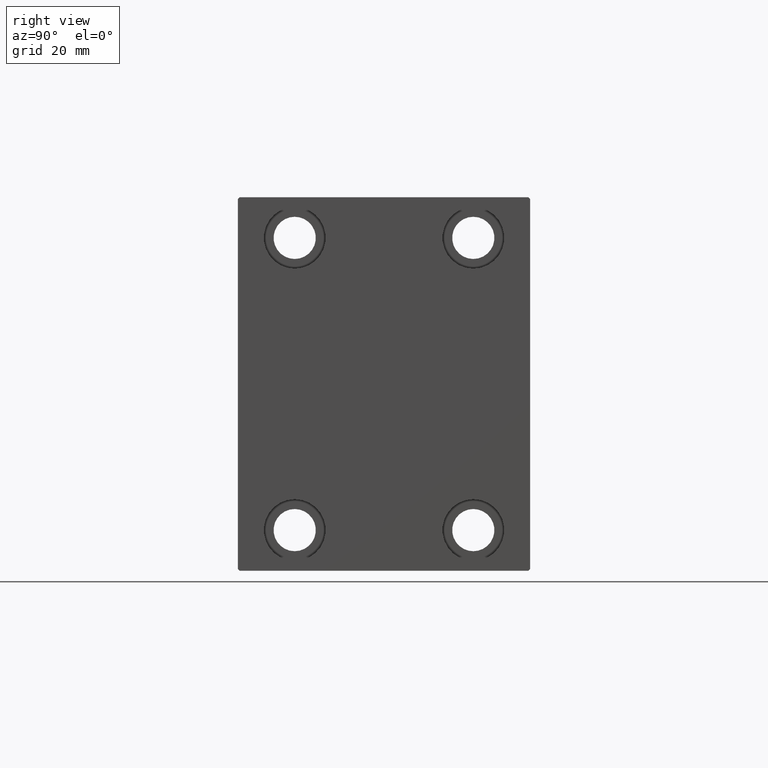
[diagram: clean part render]
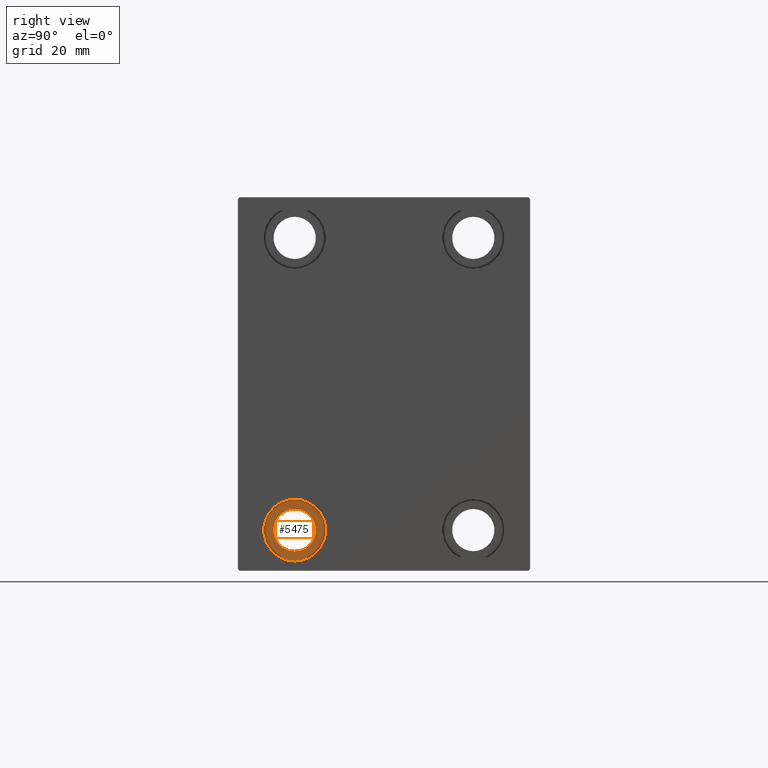
[diagram: same view with one face highlighted and labeled with its STEP entity id]
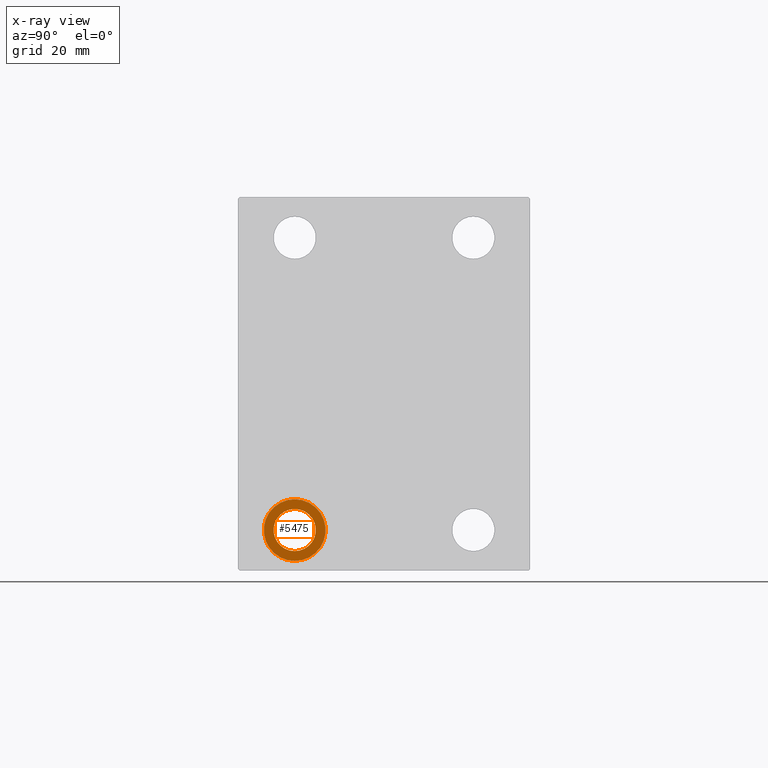
[diagram: x-ray of the same camera — body ghosted, the highlighted face saturated]
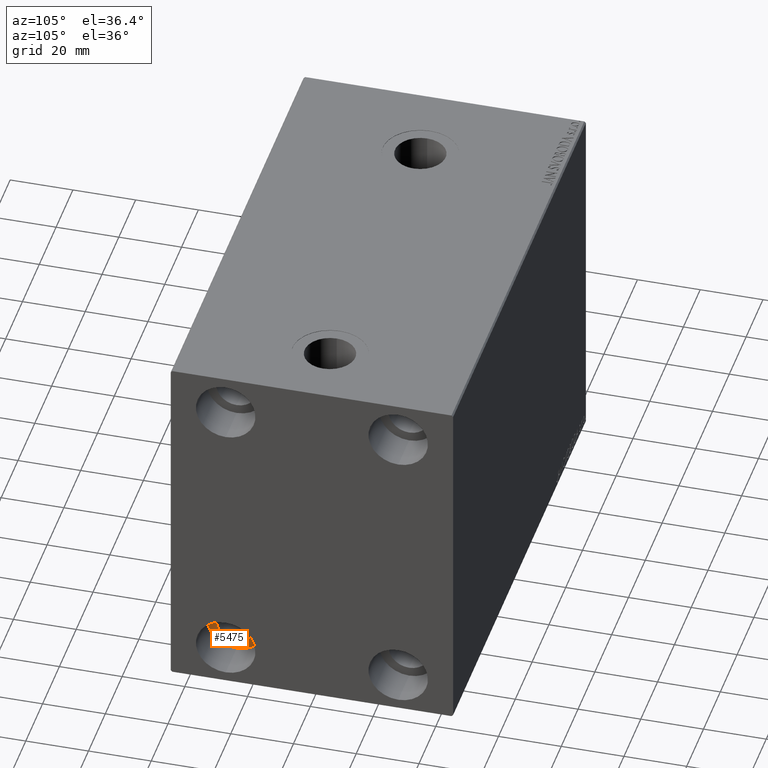
[diagram: same view with one face highlighted and labeled with its STEP entity id]
A machine part, right view. The second image highlights one B-rep face of the part: STEP entity #5475.
The next image is the same camera in x-ray: the body ghosted, the highlighted face saturated — about 0% of this face is hidden behind the body in this view.
A second angle (auxiliary view) of the same face is appended — the face is thin or edge-on in the first view.
In plain terms, the highlighted planar face has unit normal (1, 0, 0).
Its self-contained STEP definition (entity closure, byte-faithful):
#1829 = FACE_OUTER_BOUND ( 'NONE', #23514, .T. ) ;
#2615 = DIRECTION ( 'NONE',  ( -1.000000000000000000, -0.000000000000000000, -0.000000000000000000 ) ) ;
#2776 = EDGE_CURVE ( 'NONE', #17478, #5870, #12651, .T. ) ;
#3456 = AXIS2_PLACEMENT_3D ( 'NONE', #28560, #14980, #11640 ) ;
#4678 = CARTESIAN_POINT ( 'NONE',  ( 145.0000000000000000, -27.50000000000000000, -51.49999999999998579 ) ) ;
#5174 = VERTEX_POINT ( 'NONE', #20665 ) ;
#5475 = ADVANCED_FACE ( 'NONE', ( #1829, #18106 ), #12079, .T. ) ;
#5870 = VERTEX_POINT ( 'NONE', #4678 ) ;
#6059 = DIRECTION ( 'NONE',  ( 0.000000000000000000, 0.000000000000000000, -1.000000000000000000 ) ) ;
#6712 = DIRECTION ( 'NONE',  ( -1.000000000000000000, -0.000000000000000000, -0.000000000000000000 ) ) ;
#6747 = ORIENTED_EDGE ( 'NONE', *, *, #28603, .F. ) ;
#7513 = EDGE_LOOP ( 'NONE', ( #13431, #18878 ) ) ;
#8901 = CIRCLE ( 'NONE', #11723, 9.500000000000001776 ) ;
#9522 = CARTESIAN_POINT ( 'NONE',  ( 145.0000000000000000, -27.50000000000000000, -44.99999999999998579 ) ) ;
#10039 = CARTESIAN_POINT ( 'NONE',  ( 145.0000000000000000, -27.50000000000000000, -44.99999999999998579 ) ) ;
#11496 = EDGE_CURVE ( 'NONE', #17641, #5174, #12152, .T. ) ;
#11640 = DIRECTION ( 'NONE',  ( 0.000000000000000000, 0.000000000000000000, 1.000000000000000000 ) ) ;
#11723 = AXIS2_PLACEMENT_3D ( 'NONE', #13379, #26969, #40587 ) ;
#12079 = PLANE ( 'NONE',  #3456 ) ;
#12152 = CIRCLE ( 'NONE', #22817, 9.500000000000001776 ) ;
#12651 = CIRCLE ( 'NONE', #14787, 6.499999999999999112 ) ;
#13379 = CARTESIAN_POINT ( 'NONE',  ( 145.0000000000000000, -27.50000000000000000, -44.99999999999998579 ) ) ;
#13431 = ORIENTED_EDGE ( 'NONE', *, *, #2776, .T. ) ;
#14787 = AXIS2_PLACEMENT_3D ( 'NONE', #23201, #6712, #6059 ) ;
#14980 = DIRECTION ( 'NONE',  ( 1.000000000000000000, 0.000000000000000000, -0.000000000000000000 ) ) ;
#17478 = VERTEX_POINT ( 'NONE', #22312 ) ;
#17641 = VERTEX_POINT ( 'NONE', #35391 ) ;
#18106 = FACE_BOUND ( 'NONE', #7513, .T. ) ;
#18878 = ORIENTED_EDGE ( 'NONE', *, *, #37743, .T. ) ;
#20665 = CARTESIAN_POINT ( 'NONE',  ( 145.0000000000000000, -27.50000000000000000, -54.49999999999998579 ) ) ;
#22312 = CARTESIAN_POINT ( 'NONE',  ( 145.0000000000000000, -27.50000000000000000, -38.49999999999998579 ) ) ;
#22817 = AXIS2_PLACEMENT_3D ( 'NONE', #9522, #2615, #26456 ) ;
#23201 = CARTESIAN_POINT ( 'NONE',  ( 145.0000000000000000, -27.50000000000000000, -44.99999999999998579 ) ) ;
#23514 = EDGE_LOOP ( 'NONE', ( #6747, #25425 ) ) ;
#24049 = AXIS2_PLACEMENT_3D ( 'NONE', #10039, #31354, #24460 ) ;
#24460 = DIRECTION ( 'NONE',  ( 0.000000000000000000, 0.000000000000000000, -1.000000000000000000 ) ) ;
#25425 = ORIENTED_EDGE ( 'NONE', *, *, #11496, .F. ) ;
#26456 = DIRECTION ( 'NONE',  ( 0.000000000000000000, 0.000000000000000000, 1.000000000000000000 ) ) ;
#26969 = DIRECTION ( 'NONE',  ( -1.000000000000000000, -0.000000000000000000, -0.000000000000000000 ) ) ;
#28560 = CARTESIAN_POINT ( 'NONE',  ( 145.0000000000000000, 0.000000000000000000, 0.000000000000000000 ) ) ;
#28603 = EDGE_CURVE ( 'NONE', #5174, #17641, #8901, .T. ) ;
#30459 = CIRCLE ( 'NONE', #24049, 6.499999999999999112 ) ;
#31354 = DIRECTION ( 'NONE',  ( -1.000000000000000000, -0.000000000000000000, -0.000000000000000000 ) ) ;
#35391 = CARTESIAN_POINT ( 'NONE',  ( 145.0000000000000000, -27.50000000000000000, -35.49999999999998579 ) ) ;
#37743 = EDGE_CURVE ( 'NONE', #5870, #17478, #30459, .T. ) ;
#40587 = DIRECTION ( 'NONE',  ( 0.000000000000000000, 0.000000000000000000, 1.000000000000000000 ) ) ;